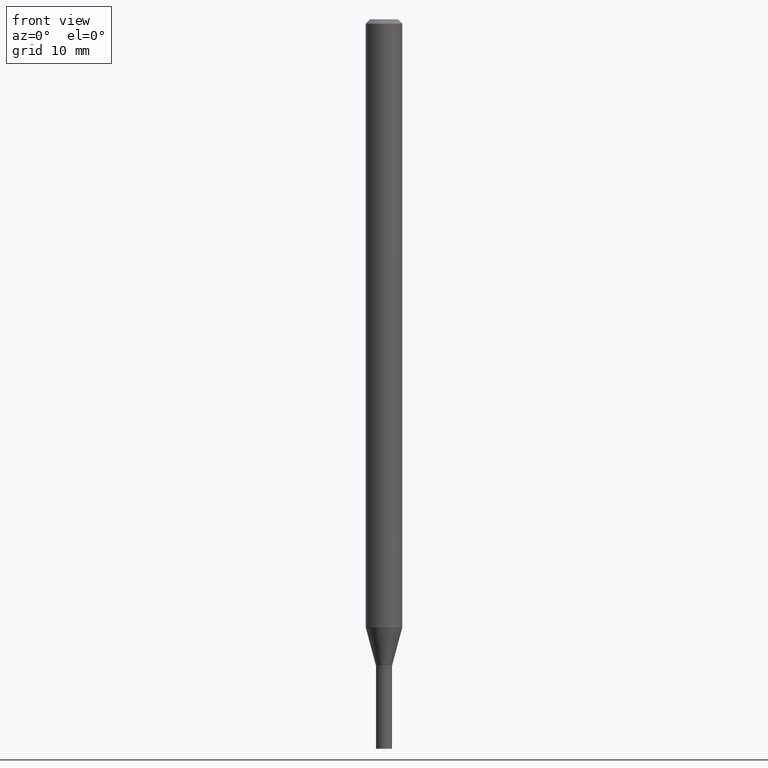
[diagram: clean part render]
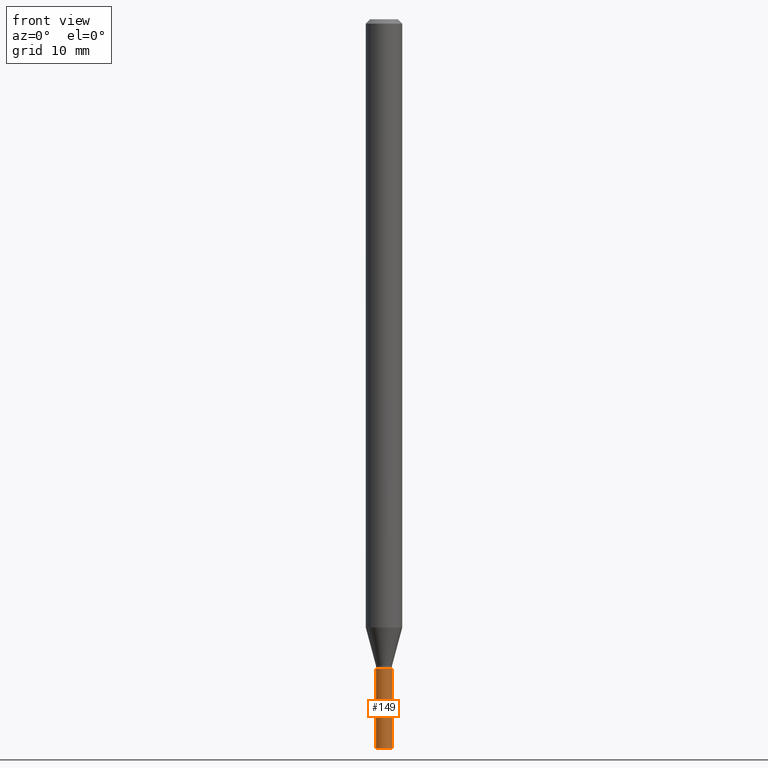
[diagram: same view with one face highlighted and labeled with its STEP entity id]
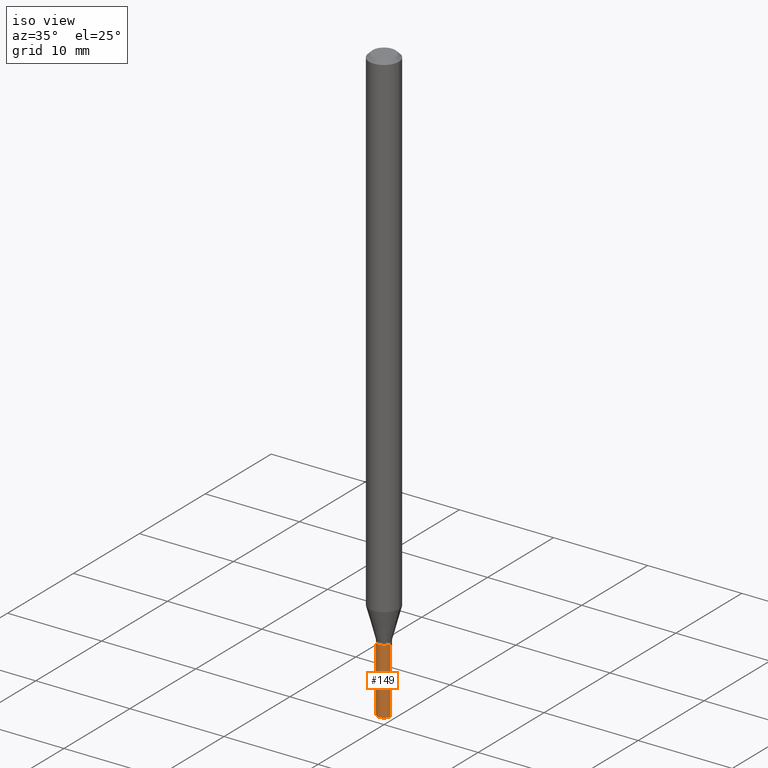
[diagram: same view with one face highlighted and labeled with its STEP entity id]
A machine part, front view. The second image highlights one B-rep face of the part: STEP entity #149.
A second angle (iso view) of the same face is appended — the face is thin or edge-on in the first view.
In plain terms, the highlighted cylindrical surface (edge-blend (fillet) strip) has radius 0.6985 mm, axis along (-0, 0, 1).
Its self-contained STEP definition (entity closure, byte-faithful):
#1 = DIRECTION ( 'NONE',  ( -2.445468806185136597E-29, 3.491481338843145583E-15, 1.000000000000000000 ) ) ;
#2 = ORIENTED_EDGE ( 'NONE', *, *, #121, .F. ) ;
#10 = VERTEX_POINT ( 'NONE', #86 ) ;
#12 = DIRECTION ( 'NONE',  ( -2.445468806185136597E-29, 3.491481338843145583E-15, 1.000000000000000000 ) ) ;
#41 = DIRECTION ( 'NONE',  ( -2.445468806185136597E-29, 3.491481338843145583E-15, 1.000000000000000000 ) ) ;
#52 = CARTESIAN_POINT ( 'NONE',  ( 5.441168093761929600E-29, -7.768545978925998537E-15, -2.225000000000000089 ) ) ;
#66 = VECTOR ( 'NONE', #332, 39.37007874015748143 ) ;
#86 = CARTESIAN_POINT ( 'NONE',  ( 0.02750000000000000014, -7.960577452562371818E-15, -2.225000000000000089 ) ) ;
#88 = VERTEX_POINT ( 'NONE', #310 ) ;
#99 = FACE_OUTER_BOUND ( 'NONE', #164, .T. ) ;
#106 = LINE ( 'NONE', #175, #66 ) ;
#121 = EDGE_CURVE ( 'NONE', #439, #10, #257, .T. ) ;
#130 = AXIS2_PLACEMENT_3D ( 'NONE', #52, #1, #281 ) ;
#131 = AXIS2_PLACEMENT_3D ( 'NONE', #177, #12, #405 ) ;
#132 = EDGE_CURVE ( 'NONE', #88, #10, #106, .T. ) ;
#137 = CARTESIAN_POINT ( 'NONE',  ( -0.02750000000000000014, -8.053225410682903621E-15, -2.500000000000000000 ) ) ;
#139 = VERTEX_POINT ( 'NONE', #137 ) ;
#143 = ORIENTED_EDGE ( 'NONE', *, *, #386, .T. ) ;
#149 = ADVANCED_FACE ( 'NONE', ( #99 ), #312, .T. ) ;
#153 = VECTOR ( 'NONE', #331, 39.37007874015748143 ) ;
#164 = EDGE_LOOP ( 'NONE', ( #315, #143, #228, #2 ) ) ;
#175 = CARTESIAN_POINT ( 'NONE',  ( 0.02750000000000000014, -1.920314736363723444E-16, 1.340948613343882413E-30 ) ) ;
#177 = CARTESIAN_POINT ( 'NONE',  ( 6.113672015462842613E-29, -8.728703347107864943E-15, -2.500000000000000000 ) ) ;
#178 = CARTESIAN_POINT ( 'NONE',  ( -0.02750000000000000014, 1.953992523340275521E-16, -1.352707149820099181E-30 ) ) ;
#212 = AXIS2_PLACEMENT_3D ( 'NONE', #245, #41, #429 ) ;
#228 = ORIENTED_EDGE ( 'NONE', *, *, #132, .T. ) ;
#245 = CARTESIAN_POINT ( 'NONE',  ( 0.000000000000000000, 0.000000000000000000, 0.000000000000000000 ) ) ;
#257 = CIRCLE ( 'NONE', #130, 0.02750000000000000014 ) ;
#281 = DIRECTION ( 'NONE',  ( 1.000000000000000000, -6.982962677686279332E-15, 0.000000000000000000 ) ) ;
#310 = CARTESIAN_POINT ( 'NONE',  ( 0.02750000000000000014, -8.920734820744236646E-15, -2.500000000000000000 ) ) ;
#312 = CYLINDRICAL_SURFACE ( 'NONE', #212, 0.02750000000000000014 ) ;
#315 = ORIENTED_EDGE ( 'NONE', *, *, #411, .F. ) ;
#320 = CIRCLE ( 'NONE', #131, 0.02750000000000000014 ) ;
#331 = DIRECTION ( 'NONE',  ( -2.445468806185136877E-29, 3.491481338843145188E-15, 1.000000000000000000 ) ) ;
#332 = DIRECTION ( 'NONE',  ( -2.445468806185136877E-29, 3.491481338843145188E-15, 1.000000000000000000 ) ) ;
#368 = LINE ( 'NONE', #178, #153 ) ;
#386 = EDGE_CURVE ( 'NONE', #139, #88, #320, .T. ) ;
#405 = DIRECTION ( 'NONE',  ( 1.000000000000000000, -6.982962677686244622E-15, 0.000000000000000000 ) ) ;
#406 = CARTESIAN_POINT ( 'NONE',  ( -0.02750000000000000014, -8.053225410682903621E-15, -2.225000000000000089 ) ) ;
#411 = EDGE_CURVE ( 'NONE', #139, #439, #368, .T. ) ;
#429 = DIRECTION ( 'NONE',  ( 1.000000000000000000, -6.982962677686266711E-15, 4.876176775795935793E-29 ) ) ;
#439 = VERTEX_POINT ( 'NONE', #406 ) ;